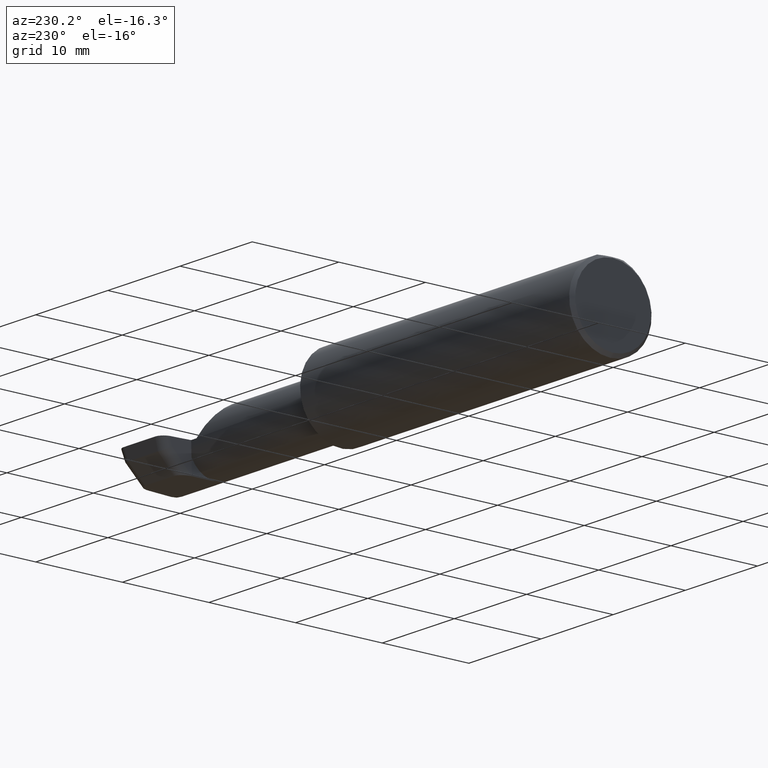
[diagram: clean part render]
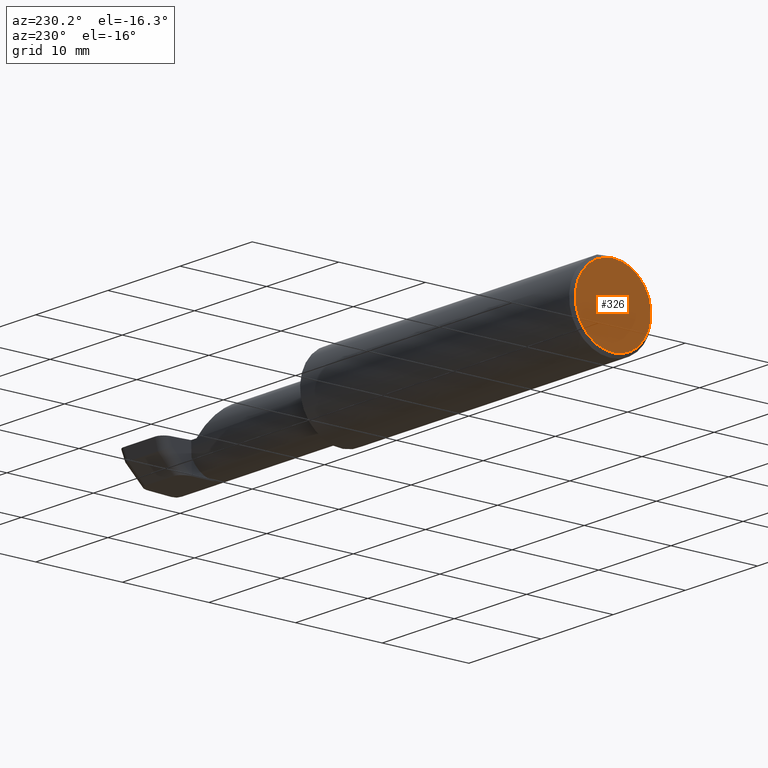
[diagram: same view with one face highlighted and labeled with its STEP entity id]
A machine part, auxiliary view. The second image highlights one B-rep face of the part: STEP entity #326.
In plain terms, the highlighted planar face has unit normal (1, 0, 0).
Its self-contained STEP definition (entity closure, byte-faithful):
#11 = DIRECTION ( 'NONE',  ( -1.000000000000000000, -0.000000000000000000, -0.000000000000000000 ) ) ;
#17 = CARTESIAN_POINT ( 'NONE',  ( 0.000000000000000000, 0.000000000000000000, 0.000000000000000000 ) ) ;
#27 = VERTEX_POINT ( 'NONE', #499 ) ;
#33 = EDGE_LOOP ( 'NONE', ( #1004, #259 ) ) ;
#78 = CIRCLE ( 'NONE', #825, 0.1723500000000004195 ) ;
#111 = AXIS2_PLACEMENT_3D ( 'NONE', #522, #347, #835 ) ;
#259 = ORIENTED_EDGE ( 'NONE', *, *, #595, .T. ) ;
#298 = PLANE ( 'NONE',  #760 ) ;
#316 = CIRCLE ( 'NONE', #111, 0.1723500000000004195 ) ;
#326 = ADVANCED_FACE ( 'NONE', ( #388 ), #298, .F. ) ;
#347 = DIRECTION ( 'NONE',  ( -1.000000000000000000, -0.000000000000000000, -0.000000000000000000 ) ) ;
#388 = FACE_OUTER_BOUND ( 'NONE', #33, .T. ) ;
#499 = CARTESIAN_POINT ( 'NONE',  ( 0.000000000000000000, 0.000000000000000000, -0.1723500000000004195 ) ) ;
#522 = CARTESIAN_POINT ( 'NONE',  ( 0.000000000000000000, 0.000000000000000000, 0.000000000000000000 ) ) ;
#595 = EDGE_CURVE ( 'NONE', #666, #27, #78, .T. ) ;
#611 = DIRECTION ( 'NONE',  ( 0.000000000000000000, 0.000000000000000000, -1.000000000000000000 ) ) ;
#634 = DIRECTION ( 'NONE',  ( 0.000000000000000000, 0.000000000000000000, -1.000000000000000000 ) ) ;
#666 = VERTEX_POINT ( 'NONE', #726 ) ;
#706 = DIRECTION ( 'NONE',  ( 1.000000000000000000, 0.000000000000000000, 0.000000000000000000 ) ) ;
#726 = CARTESIAN_POINT ( 'NONE',  ( 0.000000000000000000, 2.202527268266516892E-17, 0.1723500000000004195 ) ) ;
#760 = AXIS2_PLACEMENT_3D ( 'NONE', #789, #706, #611 ) ;
#789 = CARTESIAN_POINT ( 'NONE',  ( 0.000000000000000000, 0.000000000000000000, 0.000000000000000000 ) ) ;
#825 = AXIS2_PLACEMENT_3D ( 'NONE', #17, #11, #634 ) ;
#835 = DIRECTION ( 'NONE',  ( 0.000000000000000000, 0.000000000000000000, -1.000000000000000000 ) ) ;
#873 = EDGE_CURVE ( 'NONE', #27, #666, #316, .T. ) ;
#1004 = ORIENTED_EDGE ( 'NONE', *, *, #873, .T. ) ;